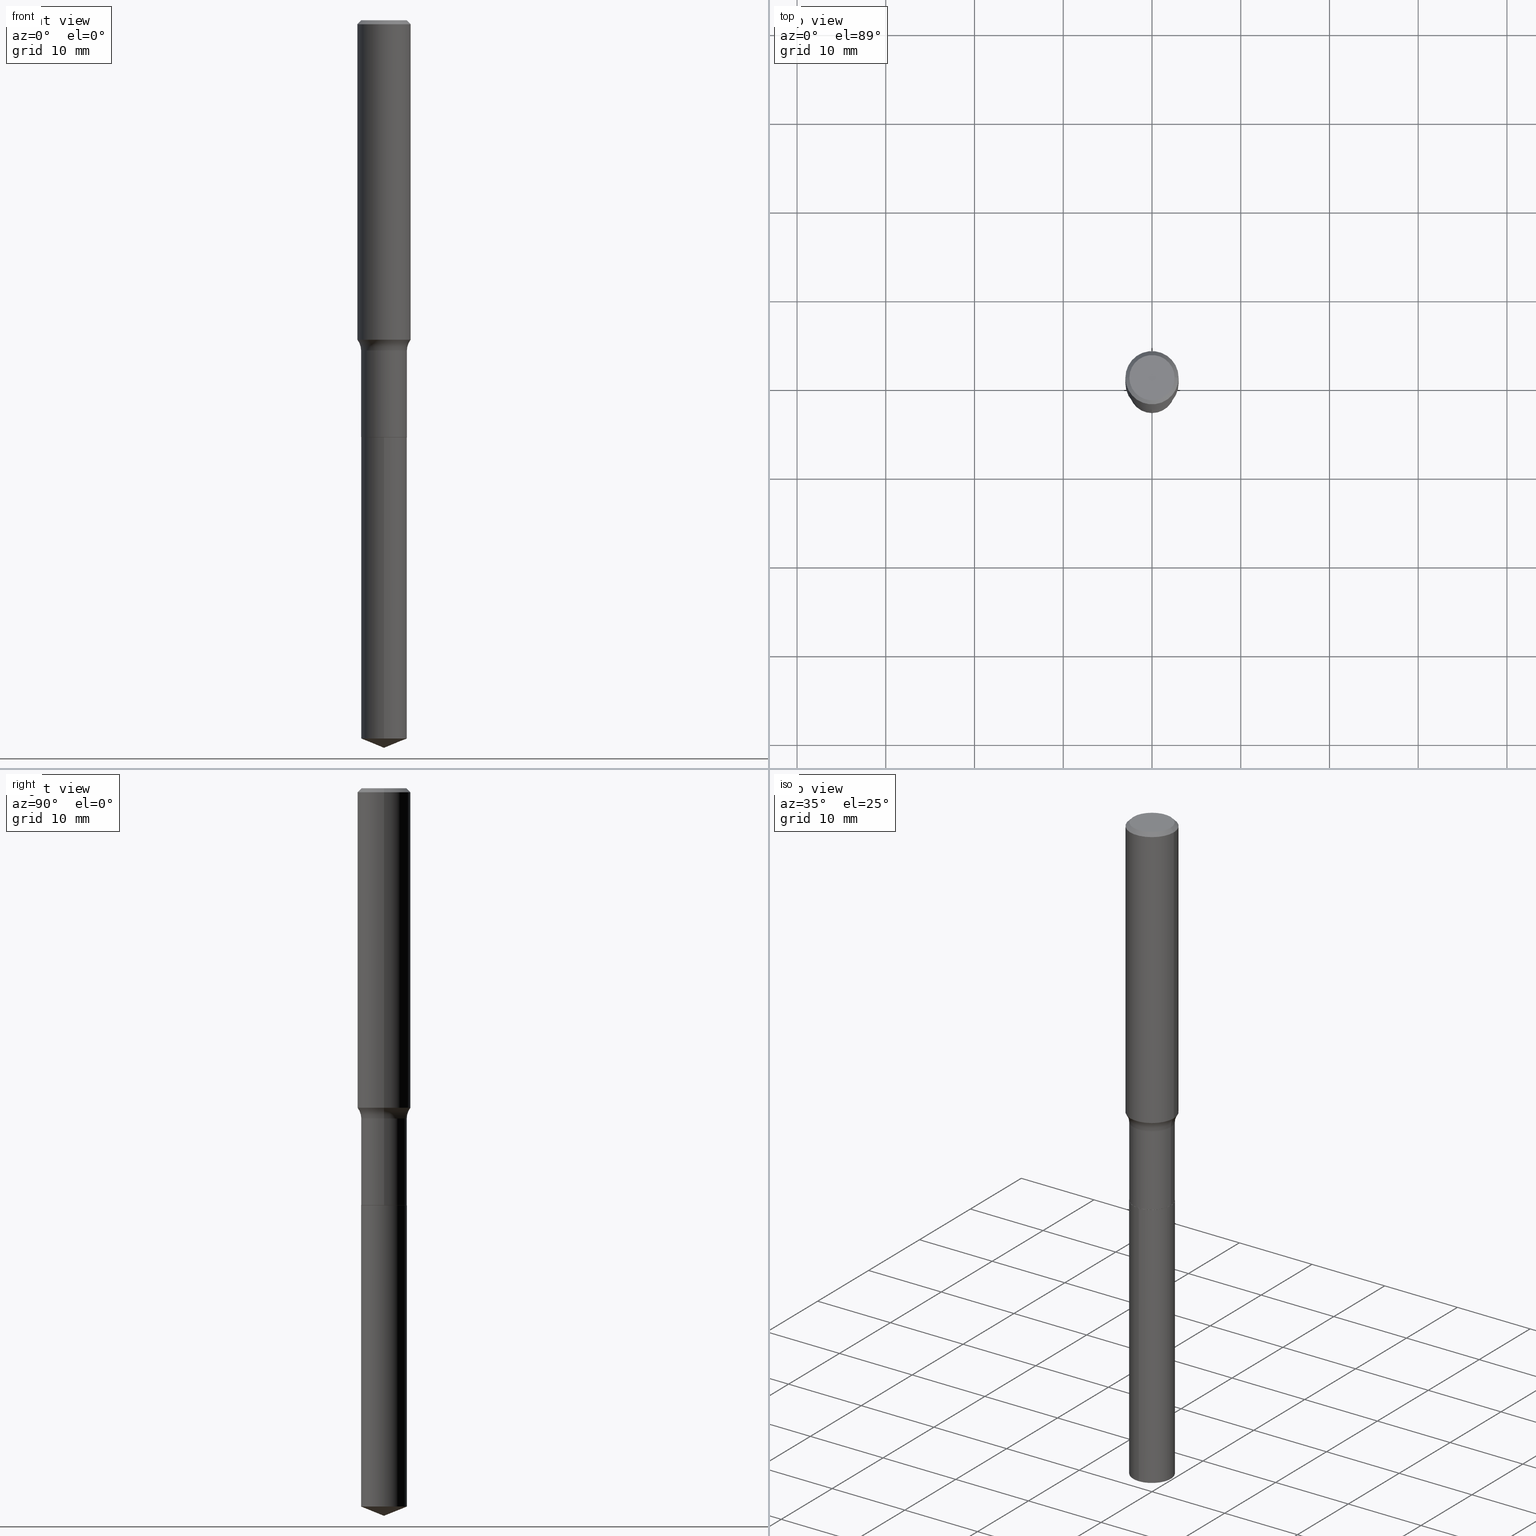
[diagram: canonical four-view strip — front | top / right | iso, engineering-drawing reading convention]
A machine part, canonical four-view strip (front | top / right | iso — engineering-drawing reading convention). The complete STEP part file that produces these views, byte-faithful:
ISO-10303-21;
HEADER;
FILE_DESCRIPTION (( 'STEP AP203' ),
    '1' );
FILE_NAME ('56843.STEP',
    '2024-04-19T14:21:31',
    ( '' ),
    ( '' ),
    'SwSTEP 2.0',
    'SolidWorks 2023',
    '' );
FILE_SCHEMA (( 'CONFIG_CONTROL_DESIGN' ));
ENDSEC;

DATA;
#1 = ORIENTED_EDGE ( 'NONE', *, *, #234, .T. ) ;
#2 = LINE ( 'NONE', #290, #287 ) ;
#3 = ADVANCED_FACE ( 'NONE', ( #321 ), #124, .T. ) ;
#4 = DIRECTION ( 'NONE',  ( -2.445468806185136597E-29, 3.491481338843145583E-15, 1.000000000000000000 ) ) ;
#5 = ORIENTED_EDGE ( 'NONE', *, *, #404, .F. ) ;
#6 = EDGE_CURVE ( 'NONE', #466, #350, #237, .T. ) ;
#7 = APPROVAL_PERSON_ORGANIZATION ( #488, #327, #86 ) ;
#8 = AXIS2_PLACEMENT_3D ( 'NONE', #296, #335, #187 ) ;
#9 = CARTESIAN_POINT ( 'NONE',  ( 0.1795499999999999319, -6.370556850853198525E-15, -1.465500000000000247 ) ) ;
#10 = EDGE_LOOP ( 'NONE', ( #206, #467 ) ) ;
#11 = DIRECTION ( 'NONE',  ( 0.7071067811865454633, -7.319954787623248157E-15, -0.7071067811865495711 ) ) ;
#12 = ORIENTED_EDGE ( 'NONE', *, *, #396, .F. ) ;
#13 = CLOSED_SHELL ( 'NONE', ( #413, #313, #168, #52, #38 ) ) ;
#14 = ORIENTED_EDGE ( 'NONE', *, *, #486, .F. ) ;
#15 = TOROIDAL_SURFACE ( 'NONE', #100, 0.1795499999999999319, 0.07799999999999995826 ) ;
#16 = EDGE_LOOP ( 'NONE', ( #155, #121, #48, #272 ) ) ;
#17 = SHAPE_DEFINITION_REPRESENTATION ( #454, #444 ) ;
#18 = EDGE_CURVE ( 'NONE', #395, #176, #359, .T. ) ;
#19 = DATE_TIME_ROLE ( 'classification_date' ) ;
#20 = PLANE ( 'NONE',  #208 ) ;
#21 = CC_DESIGN_DATE_AND_TIME_ASSIGNMENT ( #60, #19, ( #331 ) ) ;
#22 = AXIS2_PLACEMENT_3D ( 'NONE', #125, #354, #431 ) ;
#23 = ORIENTED_EDGE ( 'NONE', *, *, #134, .T. ) ;
#24 = AXIS2_PLACEMENT_3D ( 'NONE', #394, #436, #342 ) ;
#25 = AXIS2_PLACEMENT_3D ( 'NONE', #203, #236, #302 ) ;
#26 = ORIENTED_EDGE ( 'NONE', *, *, #265, .T. ) ;
#27 = APPLICATION_PROTOCOL_DEFINITION ( 'international standard', 'config_control_design', 1994, #207 ) ;
#28 = CARTESIAN_POINT ( 'NONE',  ( 4.524117291442502816E-29, -6.459240476859820373E-15, -1.850000000000000311 ) ) ;
#29 = APPROVAL_ROLE ( '' ) ;
#30 = FACE_OUTER_BOUND ( 'NONE', #16, .T. ) ;
#31 = CALENDAR_DATE ( 2024, 19, 4 ) ;
#32 = DIRECTION ( 'NONE',  ( 2.445468806185136597E-29, -3.491481338843145583E-15, -1.000000000000000000 ) ) ;
#33 = AXIS2_PLACEMENT_3D ( 'NONE', #196, #4, #140 ) ;
#34 = APPROVAL_STATUS ( 'not_yet_approved' ) ;
#35 = DIRECTION ( 'NONE',  ( -2.445468806185136597E-29, 3.491481338843145583E-15, 1.000000000000000000 ) ) ;
#36 = DIRECTION ( 'NONE',  ( 1.000000000000000000, -6.982962677686266711E-15, 4.876176775795936353E-29 ) ) ;
#37 = CYLINDRICAL_SURFACE ( 'NONE', #8, 0.1015500000000000014 ) ;
#38 = ADVANCED_FACE ( 'NONE', ( #174 ), #20, .F. ) ;
#39 = CARTESIAN_POINT ( 'NONE',  ( 4.524117291442502816E-29, -6.459240476859820373E-15, -1.850000000000000311 ) ) ;
#40 = CARTESIAN_POINT ( 'NONE',  ( -7.091198599189951267E-16, -0.1015500000000064545, -1.849999999999999867 ) ) ;
#41 = AXIS2_PLACEMENT_3D ( 'NONE', #110, #35, #256 ) ;
#42 = COORDINATED_UNIVERSAL_TIME_OFFSET ( 5, 0, .BEHIND. ) ;
#43 = ORIENTED_EDGE ( 'NONE', *, *, #430, .F. ) ;
#44 = EDGE_CURVE ( 'NONE', #135, #388, #181, .T. ) ;
#45 = CARTESIAN_POINT ( 'NONE',  ( 4.522894557039411136E-29, -6.457494736190398870E-15, -1.849500000000000366 ) ) ;
#46 = CARTESIAN_POINT ( 'NONE',  ( 0.1010500000000000009, -7.164868855440018148E-15, -1.850000000000000311 ) ) ;
#47 = ADVANCED_FACE ( 'NONE', ( #421 ), #472, .T. ) ;
#48 = ORIENTED_EDGE ( 'NONE', *, *, #44, .T. ) ;
#49 = DIRECTION ( 'NONE',  ( -2.445468806185136877E-29, 3.491481338843145188E-15, 1.000000000000000000 ) ) ;
#50 = ORIENTED_EDGE ( 'NONE', *, *, #344, .T. ) ;
#51 = CYLINDRICAL_SURFACE ( 'NONE', #22, 0.1181000000000000799 ) ;
#52 = ADVANCED_FACE ( 'NONE', ( #116 ), #37, .T. ) ;
#53 = EDGE_LOOP ( 'NONE', ( #474, #54, #158, #197 ) ) ;
#54 = ORIENTED_EDGE ( 'NONE', *, *, #295, .F. ) ;
#55 = DIRECTION ( 'NONE',  ( 0.000000000000000000, 0.000000000000000000, 1.000000000000000000 ) ) ;
#56 = ORGANIZATION ( 'UNSPECIFIED', 'UNSPECIFIED', '' ) ;
#57 = AXIS2_PLACEMENT_3D ( 'NONE', #372, #292, #381 ) ;
#58 = ORIENTED_EDGE ( 'NONE', *, *, #336, .T. ) ;
#59 = DIRECTION ( 'NONE',  ( 1.000000000000000000, -6.982962677686269077E-15, 0.000000000000000000 ) ) ;
#60 = DATE_AND_TIME ( #194, #99 ) ;
#61 = ORIENTED_EDGE ( 'NONE', *, *, #304, .T. ) ;
#62 = ORIENTED_EDGE ( 'NONE', *, *, #278, .T. ) ;
#63 = CC_DESIGN_APPROVAL ( #160, ( #331 ) ) ;
#64 = CARTESIAN_POINT ( 'NONE',  ( 4.524117291442502816E-29, -6.459240476859820373E-15, -1.850000000000000311 ) ) ;
#65 = CARTESIAN_POINT ( 'NONE',  ( 0.1010500000000000009, -7.164868855440018148E-15, -1.850000000000000311 ) ) ;
#66 = DIRECTION ( 'NONE',  ( -2.445468806185136877E-29, 3.491481338843145188E-15, 1.000000000000000000 ) ) ;
#67 = DIRECTION ( 'NONE',  ( -2.445536762474490208E-29, 3.491384021568959550E-15, 1.000000000000000000 ) ) ;
#68 = DIRECTION ( 'NONE',  ( 1.000000000000000000, -6.982962677686267499E-15, 4.883557194083112901E-29 ) ) ;
#69 = APPROVAL_DATE_TIME ( #415, #327 ) ;
#70 = LOCAL_TIME ( 10, 21, 31.00000000000000000, #289 ) ;
#71 = AXIS2_PLACEMENT_3D ( 'NONE', #232, #186, #154 ) ;
#72 = DIRECTION ( 'NONE',  ( 2.438088387897960049E-29, -3.491481338843145188E-15, -1.000000000000000000 ) ) ;
#73 = CARTESIAN_POINT ( 'NONE',  ( 7.793729356772140536E-29, -1.112712014106505691E-14, -3.186971136766440171 ) ) ;
#74 = FACE_OUTER_BOUND ( 'NONE', #170, .T. ) ;
#75 = DATE_AND_TIME ( #31, #317 ) ;
#76 = CC_DESIGN_PERSON_AND_ORGANIZATION_ASSIGNMENT ( #104, #370, ( #221 ) ) ;
#77 = CARTESIAN_POINT ( 'NONE',  ( -7.091198599189622904E-16, -0.1015500000000110897, -3.186971136766439727 ) ) ;
#78 = CARTESIAN_POINT ( 'NONE',  ( 7.894194874084487870E-29, -1.127018762162460210E-14, -3.228000000000000203 ) ) ;
#79 = DIRECTION ( 'NONE',  ( -1.000000000000000000, 6.982962677686266711E-15, 0.000000000000000000 ) ) ;
#80 = DIRECTION ( 'NONE',  ( -2.445468806185136597E-29, 3.491481338843145583E-15, 1.000000000000000000 ) ) ;
#81 = DIRECTION ( 'NONE',  ( -2.445468806185136877E-29, 3.491481338843145188E-15, 1.000000000000000000 ) ) ;
#82 = ORIENTED_EDGE ( 'NONE', *, *, #478, .F. ) ;
#83 = EDGE_CURVE ( 'NONE', #130, #466, #455, .T. ) ;
#84 = DIRECTION ( 'NONE',  ( -0.7071067811865454633, 2.468850131082235367E-15, -0.7071067811865495711 ) ) ;
#85 = DIRECTION ( 'NONE',  ( -2.445468806185136597E-29, 3.491481338843145583E-15, 1.000000000000000000 ) ) ;
#86 = APPROVAL_ROLE ( '' ) ;
#87 = ORIENTED_EDGE ( 'NONE', *, *, #422, .T. ) ;
#88 = CARTESIAN_POINT ( 'NONE',  ( 3.583834535464318409E-29, -5.116765902074630486E-15, -1.465500000000000247 ) ) ;
#89 = DIRECTION ( 'NONE',  ( 1.000000000000000000, -6.982962677686266711E-15, 4.875668750515085695E-29 ) ) ;
#90 = ORIENTED_EDGE ( 'NONE', *, *, #265, .F. ) ;
#91 = VERTEX_POINT ( 'NONE', #490 ) ;
#92 = DIRECTION ( 'NONE',  ( -2.445468806185136597E-29, 3.491481338843145583E-15, 1.000000000000000000 ) ) ;
#93 = EDGE_CURVE ( 'NONE', #204, #350, #2, .T. ) ;
#94 = DIRECTION ( 'NONE',  ( -2.445468806185136597E-29, 3.491481338843145583E-15, 1.000000000000000000 ) ) ;
#95 = VECTOR ( 'NONE', #84, 39.37007874015748143 ) ;
#96 = EDGE_LOOP ( 'NONE', ( #273, #263, #23, #266 ) ) ;
#97 = VERTEX_POINT ( 'NONE', #148 ) ;
#98 = FACE_OUTER_BOUND ( 'NONE', #131, .T. ) ;
#99 = LOCAL_TIME ( 10, 21, 31.00000000000000000, #42 ) ;
#100 = AXIS2_PLACEMENT_3D ( 'NONE', #88, #94, #423 ) ;
#101 = EDGE_LOOP ( 'NONE', ( #320, #406, #26, #127 ) ) ;
#102 = ORIENTED_EDGE ( 'NONE', *, *, #18, .T. ) ;
#103 = CC_DESIGN_PERSON_AND_ORGANIZATION_ASSIGNMENT ( #300, #462, ( #147 ) ) ;
#104 = PERSON_AND_ORGANIZATION ( #190, #56 ) ;
#105 = CC_DESIGN_SECURITY_CLASSIFICATION ( #331, ( #147 ) ) ;
#106 = DIRECTION ( 'NONE',  ( 6.588037525764792868E-15, 0.9271838545667890896, 0.3746065934159077404 ) ) ;
#107 = PERSON_AND_ORGANIZATION ( #190, #56 ) ;
#108 = FACE_OUTER_BOUND ( 'NONE', #469, .T. ) ;
#109 = CARTESIAN_POINT ( 'NONE',  ( 0.1003850000000000159, -7.803837484803599345E-16, -2.868857591682071522E-17 ) ) ;
#110 = CARTESIAN_POINT ( 'NONE',  ( 4.522894557039411136E-29, -6.457494736190398870E-15, -1.849500000000000366 ) ) ;
#111 = DIRECTION ( 'NONE',  ( -2.445536762474490488E-29, 3.491384021568959550E-15, 1.000000000000000000 ) ) ;
#112 = PRODUCT_DEFINITION ( 'UNKNOWN', '', #147, #481 ) ;
#113 = AXIS2_PLACEMENT_3D ( 'NONE', #152, #32, #79 ) ;
#114 = CARTESIAN_POINT ( 'NONE',  ( 7.015701749847187307E-46, -1.001656274515824970E-31, -2.868857591682589212E-17 ) ) ;
#115 = DIRECTION ( 'NONE',  ( 2.445468806185136597E-29, -3.491481338843145583E-15, -1.000000000000000000 ) ) ;
#116 = FACE_OUTER_BOUND ( 'NONE', #210, .T. ) ;
#117 = ADVANCED_FACE ( 'NONE', ( #108 ), #164, .T. ) ;
#118 = ORIENTED_EDGE ( 'NONE', *, *, #258, .F. ) ;
#119 = APPROVAL_PERSON_ORGANIZATION ( #405, #160, #29 ) ;
#120 = CARTESIAN_POINT ( 'NONE',  ( 7.793729356772140536E-29, -1.112712014106505691E-14, -3.186971136766440171 ) ) ;
#121 = ORIENTED_EDGE ( 'NONE', *, *, #284, .T. ) ;
#122 = DIRECTION ( 'NONE',  ( -2.445468806185136597E-29, 3.491481338843145583E-15, 1.000000000000000000 ) ) ;
#123 = ORIENTED_EDGE ( 'NONE', *, *, #278, .F. ) ;
#124 = CYLINDRICAL_SURFACE ( 'NONE', #448, 0.1015499999999999736 ) ;
#125 = CARTESIAN_POINT ( 'NONE',  ( 0.000000000000000000, 0.000000000000000000, 0.000000000000000000 ) ) ;
#126 = CC_DESIGN_PERSON_AND_ORGANIZATION_ASSIGNMENT ( #107, #362, ( #112 ) ) ;
#127 = ORIENTED_EDGE ( 'NONE', *, *, #216, .T. ) ;
#128 = AXIS2_PLACEMENT_3D ( 'NONE', #416, #492, #293 ) ;
#129 = EDGE_LOOP ( 'NONE', ( #50, #361, #82, #213 ) ) ;
#130 = VERTEX_POINT ( 'NONE', #461 ) ;
#131 = EDGE_LOOP ( 'NONE', ( #325, #202, #195, #43 ) ) ;
#132 = DIRECTION ( 'NONE',  ( -6.982962677686266711E-15, -1.000000000000000000, 3.498761904101824797E-15 ) ) ;
#133 = CONICAL_SURFACE ( 'NONE', #71, 97.44436430772850599, 1.186823891356145300 ) ;
#134 = EDGE_CURVE ( 'NONE', #310, #345, #145, .T. ) ;
#135 = VERTEX_POINT ( 'NONE', #380 ) ;
#136 = CARTESIAN_POINT ( 'NONE',  ( 0.1015499999999999736, -7.091198599190401904E-16, 4.951757515820771671E-30 ) ) ;
#137 = COORDINATED_UNIVERSAL_TIME_OFFSET ( 5, 0, .BEHIND. ) ;
#138 = CIRCLE ( 'NONE', #360, 0.1180999999999999966 ) ;
#139 = MANIFOLD_SOLID_BREP ( 'Body-Move/Copy2[2]', #434 ) ;
#140 = DIRECTION ( 'NONE',  ( 1.000000000000000000, -6.982962677686270655E-15, 0.000000000000000000 ) ) ;
#141 = CARTESIAN_POINT ( 'NONE',  ( 0.1015499999999999875, -7.166614596109438863E-15, -1.849500000000000366 ) ) ;
#142 = LENGTH_MEASURE_WITH_UNIT ( LENGTH_MEASURE( 0.02539999999999999897 ), #161 );
#143 = FACE_OUTER_BOUND ( 'NONE', #10, .T. ) ;
#144 = CARTESIAN_POINT ( 'NONE',  ( -0.1010500000000000009, -5.741237042374238537E-15, -1.850000000000000311 ) ) ;
#145 = LINE ( 'NONE', #375, #449 ) ;
#146 = CIRCLE ( 'NONE', #432, 0.1015500000000000014 ) ;
#147 = PRODUCT_DEFINITION_FORMATION_WITH_SPECIFIED_SOURCE ( 'ANY', '', #221, .NOT_KNOWN. ) ;
#148 = CARTESIAN_POINT ( 'NONE',  ( -0.1003850000000000159, 7.319105043583384717E-16, -2.868857591683090262E-17 ) ) ;
#149 = AXIS2_PLACEMENT_3D ( 'NONE', #235, #408, #285 ) ;
#150 = DIRECTION ( 'NONE',  ( -1.000000000000000000, 6.982962677686265922E-15, -4.876176775795935793E-29 ) ) ;
#151 = FACE_OUTER_BOUND ( 'NONE', #274, .T. ) ;
#152 = CARTESIAN_POINT ( 'NONE',  ( 4.332147990156998495E-31, -6.185159191760672860E-17, -0.01771500000000011607 ) ) ;
#153 = CARTESIAN_POINT ( 'NONE',  ( 4.524117291442502816E-29, -6.459240476859820373E-15, -1.850000000000000311 ) ) ;
#154 = DIRECTION ( 'NONE',  ( -6.982962677686266711E-15, -1.000000000000000000, 3.498761904101824797E-15 ) ) ;
#155 = ORIENTED_EDGE ( 'NONE', *, *, #173, .F. ) ;
#156 = DIRECTION ( 'NONE',  ( 1.000000000000000000, -6.982962677686267499E-15, 0.000000000000000000 ) ) ;
#157 = DIRECTION ( 'NONE',  ( 1.000000000000000000, -6.982962677686265922E-15, 0.000000000000000000 ) ) ;
#158 = ORIENTED_EDGE ( 'NONE', *, *, #262, .T. ) ;
#159 = AXIS2_PLACEMENT_3D ( 'NONE', #343, #115, #231 ) ;
#160 = APPROVAL ( #171, 'UNSPECIFIED' ) ;
#161 =( LENGTH_UNIT ( ) NAMED_UNIT ( * ) SI_UNIT ( $, .METRE. ) );
#162 = DIRECTION ( 'NONE',  ( 1.000000000000000000, -6.982962677686261977E-15, 0.000000000000000000 ) ) ;
#163 = ORIENTED_EDGE ( 'NONE', *, *, #367, .F. ) ;
#164 = CYLINDRICAL_SURFACE ( 'NONE', #459, 0.1181000000000000799 ) ;
#165 = CARTESIAN_POINT ( 'NONE',  ( 7.894192669267653846E-29, -1.127018762162460210E-14, -3.228000000000000203 ) ) ;
#166 = EDGE_LOOP ( 'NONE', ( #403, #243 ) ) ;
#167 = CONICAL_SURFACE ( 'NONE', #159, 0.1180999999999999966, 0.7853981633974453924 ) ;
#168 = ADVANCED_FACE ( 'NONE', ( #74 ), #133, .T. ) ;
#169 = ORIENTED_EDGE ( 'NONE', *, *, #93, .F. ) ;
#170 = EDGE_LOOP ( 'NONE', ( #199, #397, #163 ) ) ;
#171 = APPROVAL_STATUS ( 'not_yet_approved' ) ;
#172 = VECTOR ( 'NONE', #66, 39.37007874015748143 ) ;
#173 = EDGE_CURVE ( 'NONE', #245, #310, #244, .T. ) ;
#174 = FACE_OUTER_BOUND ( 'NONE', #166, .T. ) ;
#175 = DIRECTION ( 'NONE',  ( -2.445468806185136597E-29, 3.491481338843145583E-15, 1.000000000000000000 ) ) ;
#176 = VERTEX_POINT ( 'NONE', #65 ) ;
#177 = PERSON_AND_ORGANIZATION ( #190, #56 ) ;
#178 = DIRECTION ( 'NONE',  ( -2.438088387897960049E-29, 3.491481338843145188E-15, 1.000000000000000000 ) ) ;
#179 = CALENDAR_DATE ( 2024, 19, 4 ) ;
#180 = CARTESIAN_POINT ( 'NONE',  ( 0.000000000000000000, 0.000000000000000000, 0.000000000000000000 ) ) ;
#181 = CIRCLE ( 'NONE', #57, 0.1015499999999999597 ) ;
#182 = CIRCLE ( 'NONE', #324, 0.1010500000000000009 ) ;
#183 = PERSON_AND_ORGANIZATION_ROLE ( 'creator' ) ;
#184 = DIRECTION ( 'NONE',  ( -2.445468806185136597E-29, 3.491481338843145583E-15, 1.000000000000000000 ) ) ;
#185 = PLANE ( 'NONE',  #209 ) ;
#186 = DIRECTION ( 'NONE',  ( -2.445536762474490208E-29, 3.491384021568959550E-15, 1.000000000000000000 ) ) ;
#187 = DIRECTION ( 'NONE',  ( -6.982962677686266711E-15, -1.000000000000000000, 2.690150658458161520E-15 ) ) ;
#188 = CC_DESIGN_PERSON_AND_ORGANIZATION_ASSIGNMENT ( #228, #183, ( #147 ) ) ;
#189 = DIRECTION ( 'NONE',  ( -6.982962677686266711E-15, -1.000000000000000000, 5.380301316916323039E-15 ) ) ;
#190 = PERSON ( 'UNSPECIFIED', 'UNSPECIFIED', 'UNSPECIFIED', ('UNSPECIFIED'), ('UNSPECIFIED'), ('UNSPECIFIED') ) ;
#191 = CC_DESIGN_APPROVAL ( #249, ( #112 ) ) ;
#192 = AXIS2_PLACEMENT_3D ( 'NONE', #484, #72, #150 ) ;
#193 = CARTESIAN_POINT ( 'NONE',  ( -0.1180999999999999966, 7.628363003171412752E-16, -0.01771500000000011607 ) ) ;
#194 = CALENDAR_DATE ( 2024, 19, 4 ) ;
#195 = ORIENTED_EDGE ( 'NONE', *, *, #344, .F. ) ;
#196 = CARTESIAN_POINT ( 'NONE',  ( 3.466352791233351524E-29, -4.949033107201224167E-15, -1.417459418196695520 ) ) ;
#197 = ORIENTED_EDGE ( 'NONE', *, *, #478, .T. ) ;
#198 = CARTESIAN_POINT ( 'NONE',  ( 3.583834535464318409E-29, -5.116765902074630486E-15, -1.465500000000000247 ) ) ;
#199 = ORIENTED_EDGE ( 'NONE', *, *, #336, .F. ) ;
#200 = ADVANCED_FACE ( 'NONE', ( #418 ), #311, .T. ) ;
#201 = CIRCLE ( 'NONE', #217, 0.1181000000000001632 ) ;
#202 = ORIENTED_EDGE ( 'NONE', *, *, #399, .T. ) ;
#203 = CARTESIAN_POINT ( 'NONE',  ( 4.524117291442502816E-29, -6.459240476859820373E-15, -1.850000000000000311 ) ) ;
#204 = VERTEX_POINT ( 'NONE', #77 ) ;
#205 = ADVANCED_FACE ( 'NONE', ( #297 ), #412, .F. ) ;
#206 = ORIENTED_EDGE ( 'NONE', *, *, #389, .F. ) ;
#207 = APPLICATION_CONTEXT ( 'configuration controlled 3d designs of mechanical parts and assemblies' ) ;
#208 = AXIS2_PLACEMENT_3D ( 'NONE', #64, #475, #219 ) ;
#209 = AXIS2_PLACEMENT_3D ( 'NONE', #28, #178, #253 ) ;
#210 = EDGE_LOOP ( 'NONE', ( #445, #482, #385, #357 ) ) ;
#211 = VERTEX_POINT ( 'NONE', #109 ) ;
#212 = DIRECTION ( 'NONE',  ( -2.445468806185136597E-29, 3.491481338843145583E-15, 1.000000000000000000 ) ) ;
#213 = ORIENTED_EDGE ( 'NONE', *, *, #234, .F. ) ;
#214 = DIRECTION ( 'NONE',  ( 1.000000000000000000, -6.982962677686269077E-15, 0.000000000000000000 ) ) ;
#215 = DIRECTION ( 'NONE',  ( -6.982962677686266711E-15, -1.000000000000000000, 2.690150658458161520E-15 ) ) ;
#216 = EDGE_CURVE ( 'NONE', #91, #345, #138, .T. ) ;
#217 = AXIS2_PLACEMENT_3D ( 'NONE', #411, #175, #229 ) ;
#218 = EDGE_LOOP ( 'NONE', ( #12, #61, #349, #90 ) ) ;
#219 = DIRECTION ( 'NONE',  ( 6.982962677686265922E-15, 1.000000000000000000, -3.491384021568959550E-15 ) ) ;
#220 = ADVANCED_FACE ( 'NONE', ( #143 ), #185, .F. ) ;
#221 = PRODUCT ( '56843', '56843', '', ( #473 ) ) ;
#222 = DIRECTION ( 'NONE',  ( -2.445468806185136597E-29, 3.491481338843145583E-15, 1.000000000000000000 ) ) ;
#223 = DIMENSIONAL_EXPONENTS ( 1.000000000000000000, 0.000000000000000000, 0.000000000000000000, 0.000000000000000000, 0.000000000000000000, 0.000000000000000000, 0.000000000000000000 ) ;
#224 = EDGE_CURVE ( 'NONE', #316, #135, #230, .T. ) ;
#225 = CARTESIAN_POINT ( 'NONE',  ( 0.000000000000000000, 0.000000000000000000, 0.000000000000000000 ) ) ;
#226 = CARTESIAN_POINT ( 'NONE',  ( 0.1015499999999999597, -5.825885761993670479E-15, -1.465500000000000247 ) ) ;
#227 = DIRECTION ( 'NONE',  ( -2.445468806185136597E-29, 3.491481338843145583E-15, 1.000000000000000000 ) ) ;
#228 = PERSON_AND_ORGANIZATION ( #190, #56 ) ;
#229 = DIRECTION ( 'NONE',  ( 1.000000000000000000, -6.982962677686270655E-15, 0.000000000000000000 ) ) ;
#230 = LINE ( 'NONE', #378, #277 ) ;
#231 = DIRECTION ( 'NONE',  ( -1.000000000000000000, 6.982962677686266711E-15, 0.000000000000000000 ) ) ;
#232 = CARTESIAN_POINT ( 'NONE',  ( -8.838690795043812604E-28, 1.261856961827157941E-13, 36.14207874015747990 ) ) ;
#233 = UNCERTAINTY_MEASURE_WITH_UNIT (LENGTH_MEASURE( 1.000000000000000082E-05 ), #438, 'distance_accuracy_value', 'NONE');
#234 = EDGE_CURVE ( 'NONE', #365, #388, #458, .T. ) ;
#235 = CARTESIAN_POINT ( 'NONE',  ( -0.1795499999999999319, -3.840986420017371481E-15, -1.465500000000000247 ) ) ;
#236 = DIRECTION ( 'NONE',  ( -2.445536762474490208E-29, 3.491384021568959550E-15, 1.000000000000000000 ) ) ;
#237 = CIRCLE ( 'NONE', #286, 0.1015500000000000014 ) ;
#238 = AXIS2_PLACEMENT_3D ( 'NONE', #225, #184, #326 ) ;
#239 = COORDINATED_UNIVERSAL_TIME_OFFSET ( 5, 0, .BEHIND. ) ;
#240 = EDGE_LOOP ( 'NONE', ( #87, #392 ) ) ;
#241 = ADVANCED_FACE ( 'NONE', ( #30 ), #15, .F. ) ;
#242 = CARTESIAN_POINT ( 'NONE',  ( 7.015701749847187307E-46, -1.001656274515824970E-31, -2.868857591682589212E-17 ) ) ;
#243 = ORIENTED_EDGE ( 'NONE', *, *, #6, .T. ) ;
#244 = CIRCLE ( 'NONE', #33, 0.1181000000000001632 ) ;
#245 = VERTEX_POINT ( 'NONE', #353 ) ;
#246 = LINE ( 'NONE', #333, #409 ) ;
#247 = CC_DESIGN_PERSON_AND_ORGANIZATION_ASSIGNMENT ( #465, #261, ( #331 ) ) ;
#248 = ORIENTED_EDGE ( 'NONE', *, *, #463, .F. ) ;
#249 = APPROVAL ( #483, 'UNSPECIFIED' ) ;
#250 = ORIENTED_EDGE ( 'NONE', *, *, #44, .F. ) ;
#251 = CIRCLE ( 'NONE', #368, 0.1015499999999999875 ) ;
#252 = APPLICATION_PROTOCOL_DEFINITION ( 'international standard', 'config_control_design', 1994, #457 ) ;
#253 = DIRECTION ( 'NONE',  ( 1.000000000000000000, -6.982962677686265922E-15, 4.876176775795935793E-29 ) ) ;
#254 = APPROVAL_DATE_TIME ( #452, #160 ) ;
#255 = VECTOR ( 'NONE', #49, 39.37007874015748143 ) ;
#256 = DIRECTION ( 'NONE',  ( 1.000000000000000000, -6.982962677686265922E-15, 0.000000000000000000 ) ) ;
#257 = TOROIDAL_SURFACE ( 'NONE', #442, 0.1795499999999999319, 0.07799999999999995826 ) ;
#258 = EDGE_CURVE ( 'NONE', #350, #466, #417, .T. ) ;
#259 = DIRECTION ( 'NONE',  ( -6.982962677686266711E-15, -1.000000000000000000, 3.491481338843145583E-15 ) ) ;
#260 = DIRECTION ( 'NONE',  ( -2.445536762474490208E-29, 3.491384021568959550E-15, 1.000000000000000000 ) ) ;
#261 = PERSON_AND_ORGANIZATION_ROLE ( 'classification_officer' ) ;
#262 = EDGE_CURVE ( 'NONE', #310, #388, #301, .T. ) ;
#263 = ORIENTED_EDGE ( 'NONE', *, *, #173, .T. ) ;
#264 = AXIS2_PLACEMENT_3D ( 'NONE', #402, #212, #214 ) ;
#265 = EDGE_CURVE ( 'NONE', #97, #91, #383, .T. ) ;
#266 = ORIENTED_EDGE ( 'NONE', *, *, #216, .F. ) ;
#267 = ORIENTED_EDGE ( 'NONE', *, *, #224, .F. ) ;
#268 = CARTESIAN_POINT ( 'NONE',  ( 0.000000000000000000, 0.000000000000000000, 0.000000000000000000 ) ) ;
#269 = CC_DESIGN_DATE_AND_TIME_ASSIGNMENT ( #75, #425, ( #112 ) ) ;
#270 =( GEOMETRIC_REPRESENTATION_CONTEXT ( 3 ) GLOBAL_UNCERTAINTY_ASSIGNED_CONTEXT ( ( #233 ) ) GLOBAL_UNIT_ASSIGNED_CONTEXT ( ( #438, #319, #358 ) ) REPRESENTATION_CONTEXT ( 'NONE', 'WORKASPACE' ) );
#271 = CIRCLE ( 'NONE', #149, 0.07799999999999995826 ) ;
#272 = ORIENTED_EDGE ( 'NONE', *, *, #262, .F. ) ;
#273 = ORIENTED_EDGE ( 'NONE', *, *, #446, .F. ) ;
#274 = EDGE_LOOP ( 'NONE', ( #400, #328, #118, #169 ) ) ;
#275 = CARTESIAN_POINT ( 'NONE',  ( -0.1015499999999999875, -5.065574170968132732E-15, -1.849500000000000366 ) ) ;
#276 = CARTESIAN_POINT ( 'NONE',  ( 4.524117291442502816E-29, -6.459240476859820373E-15, -1.850000000000000311 ) ) ;
#277 = VECTOR ( 'NONE', #456, 39.37007874015748143 ) ;
#278 = EDGE_CURVE ( 'NONE', #316, #365, #251, .T. ) ;
#279 = CIRCLE ( 'NONE', #366, 0.1015499999999999597 ) ;
#280 = CIRCLE ( 'NONE', #437, 0.1003850000000000159 ) ;
#281 = VECTOR ( 'NONE', #299, 39.37007874015748143 ) ;
#282 = ORIENTED_EDGE ( 'NONE', *, *, #430, .T. ) ;
#283 = VECTOR ( 'NONE', #429, 39.37007874015748143 ) ;
#284 = EDGE_CURVE ( 'NONE', #245, #135, #271, .T. ) ;
#285 = DIRECTION ( 'NONE',  ( -1.000000000000000000, 7.105427357601001859E-15, 0.000000000000000000 ) ) ;
#286 = AXIS2_PLACEMENT_3D ( 'NONE', #39, #363, #215 ) ;
#287 = VECTOR ( 'NONE', #453, 39.37007874015748143 ) ;
#288 = CARTESIAN_POINT ( 'NONE',  ( -8.838690795043812604E-28, 1.261856961827157941E-13, 36.14207874015747990 ) ) ;
#289 = COORDINATED_UNIVERSAL_TIME_OFFSET ( 5, 0, .BEHIND. ) ;
#290 = CARTESIAN_POINT ( 'NONE',  ( -7.091198599189951267E-16, -0.1015500000000064545, -1.849999999999999867 ) ) ;
#291 = LINE ( 'NONE', #78, #332 ) ;
#292 = DIRECTION ( 'NONE',  ( -2.445468806185136597E-29, 3.491481338843145583E-15, 1.000000000000000000 ) ) ;
#293 = DIRECTION ( 'NONE',  ( 1.000000000000000000, -6.982962677686269077E-15, 0.000000000000000000 ) ) ;
#294 = DIRECTION ( 'NONE',  ( -2.445468806185136597E-29, 3.491481338843145583E-15, 1.000000000000000000 ) ) ;
#295 = EDGE_CURVE ( 'NONE', #310, #245, #201, .T. ) ;
#296 = CARTESIAN_POINT ( 'NONE',  ( 4.524117291442502816E-29, -6.459240476859820373E-15, -1.850000000000000311 ) ) ;
#297 = FACE_OUTER_BOUND ( 'NONE', #240, .T. ) ;
#298 = ADVANCED_FACE ( 'NONE', ( #330 ), #377, .T. ) ;
#299 = DIRECTION ( 'NONE',  ( -0.7071067811866078578, 7.493145998870571886E-15, 0.7071067811864871766 ) ) ;
#300 = PERSON_AND_ORGANIZATION ( #190, #56 ) ;
#301 = CIRCLE ( 'NONE', #426, 0.07799999999999995826 ) ;
#302 = DIRECTION ( 'NONE',  ( -6.982962677686266711E-15, -1.000000000000000000, 2.690150658458161520E-15 ) ) ;
#303 = CYLINDRICAL_SURFACE ( 'NONE', #364, 0.1015500000000000014 ) ;
#304 = EDGE_CURVE ( 'NONE', #211, #345, #246, .T. ) ;
#305 = MANIFOLD_SOLID_BREP ( 'Body-Move/Copy2[1]', #13 ) ;
#306 = AXIS2_PLACEMENT_3D ( 'NONE', #242, #85, #89 ) ;
#307 = CIRCLE ( 'NONE', #306, 0.1003850000000000159 ) ;
#308 = EDGE_LOOP ( 'NONE', ( #267, #62, #1, #250 ) ) ;
#309 = ADVANCED_FACE ( 'NONE', ( #98 ), #351, .T. ) ;
#310 = VERTEX_POINT ( 'NONE', #479 ) ;
#311 = CONICAL_SURFACE ( 'NONE', #128, 0.1010500000000000009, 0.7853981633975336552 ) ;
#312 = DIRECTION ( 'NONE',  ( -6.982962677686266711E-15, -1.000000000000000000, 2.690150658458161520E-15 ) ) ;
#313 = ADVANCED_FACE ( 'NONE', ( #407 ), #341, .T. ) ;
#314 = LINE ( 'NONE', #46, #283 ) ;
#315 = DIRECTION ( 'NONE',  ( 1.000000000000000000, -6.982962677686266711E-15, 4.876176775795935793E-29 ) ) ;
#316 = VERTEX_POINT ( 'NONE', #275 ) ;
#317 = LOCAL_TIME ( 10, 21, 31.00000000000000000, #410 ) ;
#318 = CIRCLE ( 'NONE', #384, 0.1015500000000000014 ) ;
#319 =( NAMED_UNIT ( * ) PLANE_ANGLE_UNIT ( ) SI_UNIT ( $, .RADIAN. ) );
#320 = ORIENTED_EDGE ( 'NONE', *, *, #304, .F. ) ;
#321 = FACE_OUTER_BOUND ( 'NONE', #129, .T. ) ;
#322 = DIRECTION ( 'NONE',  ( -2.445536762474490208E-29, 3.491384021568959550E-15, 1.000000000000000000 ) ) ;
#323 = ORIENTED_EDGE ( 'NONE', *, *, #399, .F. ) ;
#324 = AXIS2_PLACEMENT_3D ( 'NONE', #153, #487, #339 ) ;
#325 = ORIENTED_EDGE ( 'NONE', *, *, #389, .T. ) ;
#326 = DIRECTION ( 'NONE',  ( 1.000000000000000000, -6.982962677686266711E-15, 4.876176775795935793E-29 ) ) ;
#327 = APPROVAL ( #34, 'UNSPECIFIED' ) ;
#328 = ORIENTED_EDGE ( 'NONE', *, *, #83, .T. ) ;
#329 = CALENDAR_DATE ( 2024, 19, 4 ) ;
#330 = FACE_OUTER_BOUND ( 'NONE', #308, .T. ) ;
#331 = SECURITY_CLASSIFICATION ( '', '', #340 ) ;
#332 = VECTOR ( 'NONE', #106, 39.37007874015748143 ) ;
#333 = CARTESIAN_POINT ( 'NONE',  ( 0.1180999999999999966, -8.720764054544246253E-16, -0.01771500000000011607 ) ) ;
#334 = CARTESIAN_POINT ( 'NONE',  ( 0.1180999999999999966, -8.865394841523548556E-16, -0.01771500000000011607 ) ) ;
#335 = DIRECTION ( 'NONE',  ( -2.445536762474490208E-29, 3.491384021568959550E-15, 1.000000000000000000 ) ) ;
#336 = EDGE_CURVE ( 'NONE', #468, #130, #291, .T. ) ;
#337 = FACE_OUTER_BOUND ( 'NONE', #101, .T. ) ;
#338 = APPROVAL_PERSON_ORGANIZATION ( #177, #249, #480 ) ;
#339 = DIRECTION ( 'NONE',  ( 1.000000000000000000, -6.982962677686269077E-15, 0.000000000000000000 ) ) ;
#340 = SECURITY_CLASSIFICATION_LEVEL ( 'unclassified' ) ;
#341 = CONICAL_SURFACE ( 'NONE', #441, 97.44436430772850599, 1.186823891356145300 ) ;
#342 = DIRECTION ( 'NONE',  ( 1.000000000000000000, -6.982962677686266711E-15, 0.000000000000000000 ) ) ;
#343 = CARTESIAN_POINT ( 'NONE',  ( 4.332147990156998495E-31, -6.185159191760672860E-17, -0.01771500000000011607 ) ) ;
#344 = EDGE_CURVE ( 'NONE', #365, #316, #401, .T. ) ;
#345 = VERTEX_POINT ( 'NONE', #334 ) ;
#346 = CARTESIAN_POINT ( 'NONE',  ( 7.215561481644269108E-16, 0.1015499999999935482, -1.850000000000000533 ) ) ;
#347 = CARTESIAN_POINT ( 'NONE',  ( 7.215561481644597472E-16, 0.1015499999999935482, -1.850000000000000533 ) ) ;
#348 = DIRECTION ( 'NONE',  ( -2.445468806185136597E-29, 3.491481338843145583E-15, 1.000000000000000000 ) ) ;
#349 = ORIENTED_EDGE ( 'NONE', *, *, #463, .T. ) ;
#350 = VERTEX_POINT ( 'NONE', #40 ) ;
#351 = CONICAL_SURFACE ( 'NONE', #264, 0.1010500000000000009, 0.7853981633975336552 ) ;
#352 = DIRECTION ( 'NONE',  ( -6.982962677686266711E-15, -1.000000000000000000, 5.380301316916323039E-15 ) ) ;
#353 = CARTESIAN_POINT ( 'NONE',  ( -0.1181000000000001632, -4.109882136268544392E-15, -1.417459418196695520 ) ) ;
#354 = DIRECTION ( 'NONE',  ( -2.445468806185136597E-29, 3.491481338843145583E-15, 1.000000000000000000 ) ) ;
#355 = EDGE_LOOP ( 'NONE', ( #5, #58, #14 ) ) ;
#356 = PRODUCT_RELATED_PRODUCT_CATEGORY ( 'detail', '', ( #221 ) ) ;
#357 = ORIENTED_EDGE ( 'NONE', *, *, #6, .F. ) ;
#358 =( NAMED_UNIT ( * ) SI_UNIT ( $, .STERADIAN. ) SOLID_ANGLE_UNIT ( ) );
#359 = CIRCLE ( 'NONE', #424, 0.1010500000000000009 ) ;
#360 = AXIS2_PLACEMENT_3D ( 'NONE', #447, #373, #371 ) ;
#361 = ORIENTED_EDGE ( 'NONE', *, *, #224, .T. ) ;
#362 = PERSON_AND_ORGANIZATION_ROLE ( 'creator' ) ;
#363 = DIRECTION ( 'NONE',  ( -2.445536762474490208E-29, 3.491384021568959550E-15, 1.000000000000000000 ) ) ;
#364 = AXIS2_PLACEMENT_3D ( 'NONE', #464, #260, #312 ) ;
#365 = VERTEX_POINT ( 'NONE', #141 ) ;
#366 = AXIS2_PLACEMENT_3D ( 'NONE', #198, #122, #156 ) ;
#367 = EDGE_CURVE ( 'NONE', #130, #204, #318, .T. ) ;
#368 = AXIS2_PLACEMENT_3D ( 'NONE', #45, #348, #157 ) ;
#369 = ORIENTED_EDGE ( 'NONE', *, *, #446, .T. ) ;
#370 = PERSON_AND_ORGANIZATION_ROLE ( 'design_owner' ) ;
#371 = DIRECTION ( 'NONE',  ( 1.000000000000000000, -6.982962677686266711E-15, 0.000000000000000000 ) ) ;
#372 = CARTESIAN_POINT ( 'NONE',  ( 3.583834535464318409E-29, -5.116765902074630486E-15, -1.465500000000000247 ) ) ;
#373 = DIRECTION ( 'NONE',  ( -2.445468806185136597E-29, 3.491481338843145583E-15, 1.000000000000000000 ) ) ;
#374 = DIRECTION ( 'NONE',  ( -6.474490251793179418E-15, -0.9271838545667866471, 0.3746065934159141797 ) ) ;
#375 = CARTESIAN_POINT ( 'NONE',  ( 0.1181000000000000799, -8.246878922347486570E-16, 5.758764772215004644E-30 ) ) ;
#376 = ADVANCED_FACE ( 'NONE', ( #337 ), #167, .T. ) ;
#377 = CYLINDRICAL_SURFACE ( 'NONE', #238, 0.1015499999999999736 ) ;
#378 = CARTESIAN_POINT ( 'NONE',  ( -0.1015499999999999736, 7.215561481643815513E-16, -4.995178584153855700E-30 ) ) ;
#379 = CARTESIAN_POINT ( 'NONE',  ( 3.583834535464318409E-29, -5.116765902074630486E-15, -1.465500000000000247 ) ) ;
#380 = CARTESIAN_POINT ( 'NONE',  ( -0.1015499999999999597, -5.065574170968132732E-15, -1.465500000000000247 ) ) ;
#381 = DIRECTION ( 'NONE',  ( 1.000000000000000000, -6.982962677686267499E-15, 0.000000000000000000 ) ) ;
#382 = FACE_OUTER_BOUND ( 'NONE', #53, .T. ) ;
#383 = LINE ( 'NONE', #193, #95 ) ;
#384 = AXIS2_PLACEMENT_3D ( 'NONE', #73, #67, #189 ) ;
#385 = ORIENTED_EDGE ( 'NONE', *, *, #93, .T. ) ;
#386 = LINE ( 'NONE', #390, #255 ) ;
#387 = CALENDAR_DATE ( 2024, 19, 4 ) ;
#388 = VERTEX_POINT ( 'NONE', #226 ) ;
#389 = EDGE_CURVE ( 'NONE', #176, #395, #182, .T. ) ;
#390 = CARTESIAN_POINT ( 'NONE',  ( -0.1181000000000000799, 8.391509709326788873E-16, -5.809262341591047988E-30 ) ) ;
#391 = LOCAL_TIME ( 10, 21, 31.00000000000000000, #239 ) ;
#392 = ORIENTED_EDGE ( 'NONE', *, *, #396, .T. ) ;
#393 = ADVANCED_FACE ( 'NONE', ( #382 ), #257, .F. ) ;
#394 = CARTESIAN_POINT ( 'NONE',  ( 4.332147990156998495E-31, -6.185159191760672860E-17, -0.01771500000000011607 ) ) ;
#395 = VERTEX_POINT ( 'NONE', #414 ) ;
#396 = EDGE_CURVE ( 'NONE', #211, #97, #280, .T. ) ;
#397 = ORIENTED_EDGE ( 'NONE', *, *, #404, .T. ) ;
#398 = CARTESIAN_POINT ( 'NONE',  ( 0.000000000000000000, 0.000000000000000000, 0.000000000000000000 ) ) ;
#399 = EDGE_CURVE ( 'NONE', #395, #316, #491, .T. ) ;
#400 = ORIENTED_EDGE ( 'NONE', *, *, #486, .T. ) ;
#401 = CIRCLE ( 'NONE', #41, 0.1015499999999999875 ) ;
#402 = CARTESIAN_POINT ( 'NONE',  ( 4.524117291442502816E-29, -6.459240476859820373E-15, -1.850000000000000311 ) ) ;
#403 = ORIENTED_EDGE ( 'NONE', *, *, #258, .T. ) ;
#404 = EDGE_CURVE ( 'NONE', #468, #204, #460, .T. ) ;
#405 = PERSON_AND_ORGANIZATION ( #190, #56 ) ;
#406 = ORIENTED_EDGE ( 'NONE', *, *, #422, .F. ) ;
#407 = FACE_OUTER_BOUND ( 'NONE', #355, .T. ) ;
#408 = DIRECTION ( 'NONE',  ( 7.105427357601001859E-15, 1.000000000000000000, -3.491481338843145583E-15 ) ) ;
#409 = VECTOR ( 'NONE', #11, 39.37007874015748143 ) ;
#410 = COORDINATED_UNIVERSAL_TIME_OFFSET ( 5, 0, .BEHIND. ) ;
#411 = CARTESIAN_POINT ( 'NONE',  ( 3.466352791233351524E-29, -4.949033107201224167E-15, -1.417459418196695520 ) ) ;
#412 = PLANE ( 'NONE',  #192 ) ;
#413 = ADVANCED_FACE ( 'NONE', ( #151 ), #303, .T. ) ;
#414 = CARTESIAN_POINT ( 'NONE',  ( -0.1010500000000000009, -5.738587815200127336E-15, -1.850000000000000311 ) ) ;
#415 = DATE_AND_TIME ( #387, #391 ) ;
#416 = CARTESIAN_POINT ( 'NONE',  ( 4.524117291442502816E-29, -6.459240476859820373E-15, -1.850000000000000311 ) ) ;
#417 = CIRCLE ( 'NONE', #25, 0.1015500000000000014 ) ;
#418 = FACE_OUTER_BOUND ( 'NONE', #435, .T. ) ;
#419 = CARTESIAN_POINT ( 'NONE',  ( 7.893941230997046438E-29, -1.127054769553909070E-14, -3.228000000000000203 ) ) ;
#420 = VECTOR ( 'NONE', #374, 39.37007874015748143 ) ;
#421 = FACE_OUTER_BOUND ( 'NONE', #218, .T. ) ;
#422 = EDGE_CURVE ( 'NONE', #97, #211, #307, .T. ) ;
#423 = DIRECTION ( 'NONE',  ( 1.000000000000000000, -6.982962677686267499E-15, 4.883557194083112901E-29 ) ) ;
#424 = AXIS2_PLACEMENT_3D ( 'NONE', #276, #222, #59 ) ;
#425 = DATE_TIME_ROLE ( 'creation_date' ) ;
#426 = AXIS2_PLACEMENT_3D ( 'NONE', #9, #259, #162 ) ;
#427 = ORIENTED_EDGE ( 'NONE', *, *, #134, .F. ) ;
#428 = DIRECTION ( 'NONE',  ( -2.445536762474490208E-29, 3.491384021568959550E-15, 1.000000000000000000 ) ) ;
#429 = DIRECTION ( 'NONE',  ( 0.7071067811866078578, -2.468850131082888544E-15, 0.7071067811864871766 ) ) ;
#430 = EDGE_CURVE ( 'NONE', #176, #365, #314, .T. ) ;
#431 = DIRECTION ( 'NONE',  ( 1.000000000000000000, -6.982962677686266711E-15, 4.876176775795936353E-29 ) ) ;
#432 = AXIS2_PLACEMENT_3D ( 'NONE', #120, #428, #352 ) ;
#433 = CC_DESIGN_APPROVAL ( #327, ( #147 ) ) ;
#434 = CLOSED_SHELL ( 'NONE', ( #309, #47, #117, #241, #3, #298, #393, #450, #376, #205, #220, #200 ) ) ;
#435 = EDGE_LOOP ( 'NONE', ( #323, #102, #282, #123 ) ) ;
#436 = DIRECTION ( 'NONE',  ( -2.445468806185136597E-29, 3.491481338843145583E-15, 1.000000000000000000 ) ) ;
#437 = AXIS2_PLACEMENT_3D ( 'NONE', #114, #80, #489 ) ;
#438 =( CONVERSION_BASED_UNIT ( 'INCH', #142 ) LENGTH_UNIT ( ) NAMED_UNIT ( #223 ) );
#439 = DIRECTION ( 'NONE',  ( 1.000000000000000000, 0.000000000000000000, 0.000000000000000000 ) ) ;
#440 = LOCAL_TIME ( 10, 21, 31.00000000000000000, #137 ) ;
#441 = AXIS2_PLACEMENT_3D ( 'NONE', #288, #322, #132 ) ;
#442 = AXIS2_PLACEMENT_3D ( 'NONE', #379, #294, #68 ) ;
#443 = ORIENTED_EDGE ( 'NONE', *, *, #295, .T. ) ;
#444 = ADVANCED_BREP_SHAPE_REPRESENTATION ( '56843', ( #305, #139, #471 ), #270 ) ;
#445 = ORIENTED_EDGE ( 'NONE', *, *, #83, .F. ) ;
#446 = EDGE_CURVE ( 'NONE', #245, #91, #386, .T. ) ;
#447 = CARTESIAN_POINT ( 'NONE',  ( 4.332147990156998495E-31, -6.185159191760672860E-17, -0.01771500000000011607 ) ) ;
#448 = AXIS2_PLACEMENT_3D ( 'NONE', #268, #92, #315 ) ;
#449 = VECTOR ( 'NONE', #81, 39.37007874015748143 ) ;
#450 = ADVANCED_FACE ( 'NONE', ( #470 ), #51, .T. ) ;
#451 = APPROVAL_DATE_TIME ( #476, #249 ) ;
#452 = DATE_AND_TIME ( #179, #70 ) ;
#453 = DIRECTION ( 'NONE',  ( -2.445536762474490488E-29, 3.491384021568959550E-15, 1.000000000000000000 ) ) ;
#454 = PRODUCT_DEFINITION_SHAPE ( 'NONE', 'NONE',  #112 ) ;
#455 = LINE ( 'NONE', #346, #477 ) ;
#456 = DIRECTION ( 'NONE',  ( -2.445468806185136877E-29, 3.491481338843145188E-15, 1.000000000000000000 ) ) ;
#457 = APPLICATION_CONTEXT ( 'configuration controlled 3d designs of mechanical parts and assemblies' ) ;
#458 = LINE ( 'NONE', #136, #172 ) ;
#459 = AXIS2_PLACEMENT_3D ( 'NONE', #180, #227, #36 ) ;
#460 = LINE ( 'NONE', #419, #420 ) ;
#461 = CARTESIAN_POINT ( 'NONE',  ( 7.215561481644591555E-16, 0.1015499999999888436, -3.186971136766440615 ) ) ;
#462 = PERSON_AND_ORGANIZATION_ROLE ( 'design_supplier' ) ;
#463 = EDGE_CURVE ( 'NONE', #345, #91, #485, .T. ) ;
#464 = CARTESIAN_POINT ( 'NONE',  ( 4.524117291442502816E-29, -6.459240476859820373E-15, -1.850000000000000311 ) ) ;
#465 = PERSON_AND_ORGANIZATION ( #190, #56 ) ;
#466 = VERTEX_POINT ( 'NONE', #347 ) ;
#467 = ORIENTED_EDGE ( 'NONE', *, *, #18, .F. ) ;
#468 = VERTEX_POINT ( 'NONE', #165 ) ;
#469 = EDGE_LOOP ( 'NONE', ( #443, #369, #248, #427 ) ) ;
#470 = FACE_OUTER_BOUND ( 'NONE', #96, .T. ) ;
#471 = AXIS2_PLACEMENT_3D ( 'NONE', #398, #55, #439 ) ;
#472 = CONICAL_SURFACE ( 'NONE', #113, 0.1180999999999999966, 0.7853981633974453924 ) ;
#473 = MECHANICAL_CONTEXT ( 'NONE', #457, 'mechanical' ) ;
#474 = ORIENTED_EDGE ( 'NONE', *, *, #284, .F. ) ;
#475 = DIRECTION ( 'NONE',  ( 2.445536762474489928E-29, -3.491384021568959550E-15, -1.000000000000000000 ) ) ;
#476 = DATE_AND_TIME ( #329, #440 ) ;
#477 = VECTOR ( 'NONE', #111, 39.37007874015748143 ) ;
#478 = EDGE_CURVE ( 'NONE', #388, #135, #279, .T. ) ;
#479 = CARTESIAN_POINT ( 'NONE',  ( 0.1181000000000001632, -5.773720999435972430E-15, -1.417459418196695520 ) ) ;
#480 = APPROVAL_ROLE ( '' ) ;
#481 = DESIGN_CONTEXT ( 'detailed design', #207, 'design' ) ;
#482 = ORIENTED_EDGE ( 'NONE', *, *, #367, .T. ) ;
#483 = APPROVAL_STATUS ( 'not_yet_approved' ) ;
#484 = CARTESIAN_POINT ( 'NONE',  ( 3.507850874923593654E-46, -5.008281372579124849E-32, -1.434428795841294606E-17 ) ) ;
#485 = CIRCLE ( 'NONE', #24, 0.1180999999999999966 ) ;
#486 = EDGE_CURVE ( 'NONE', #204, #130, #146, .T. ) ;
#487 = DIRECTION ( 'NONE',  ( -2.445468806185136597E-29, 3.491481338843145583E-15, 1.000000000000000000 ) ) ;
#488 = PERSON_AND_ORGANIZATION ( #190, #56 ) ;
#489 = DIRECTION ( 'NONE',  ( 1.000000000000000000, -6.982962677686266711E-15, 4.875668750515085695E-29 ) ) ;
#490 = CARTESIAN_POINT ( 'NONE',  ( -0.1180999999999999966, -1.666291378626735802E-15, -0.01771500000000011607 ) ) ;
#491 = LINE ( 'NONE', #144, #281 ) ;
#492 = DIRECTION ( 'NONE',  ( -2.445468806185136597E-29, 3.491481338843145583E-15, 1.000000000000000000 ) ) ;
ENDSEC;
END-ISO-10303-21;
